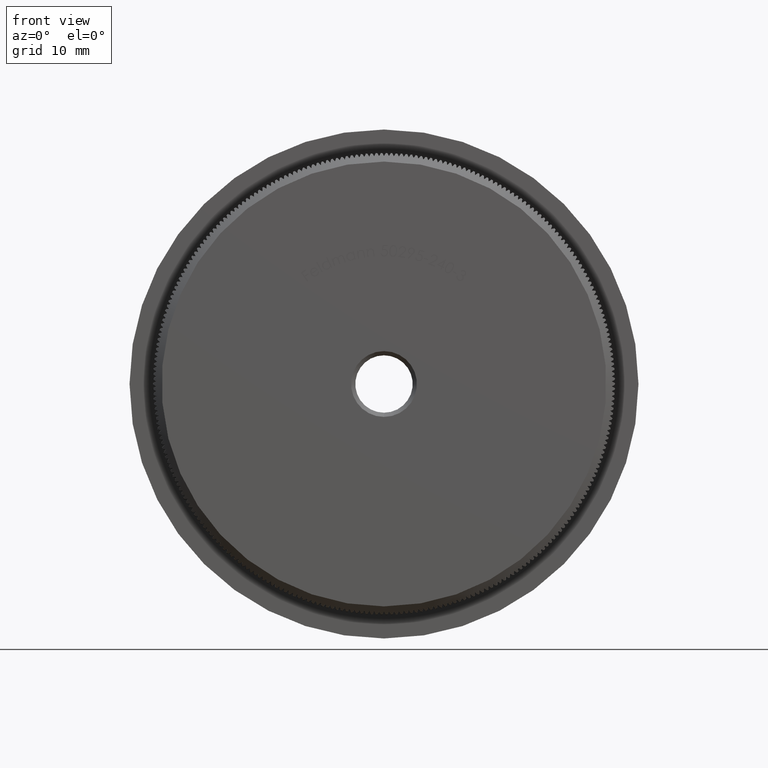
[diagram: clean part render]
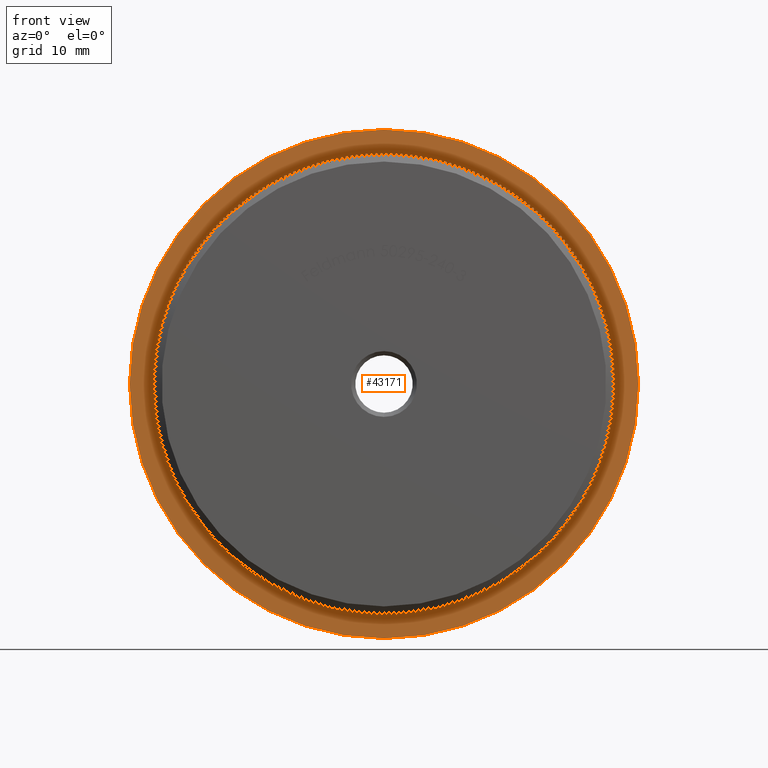
[diagram: same view with one face highlighted and labeled with its STEP entity id]
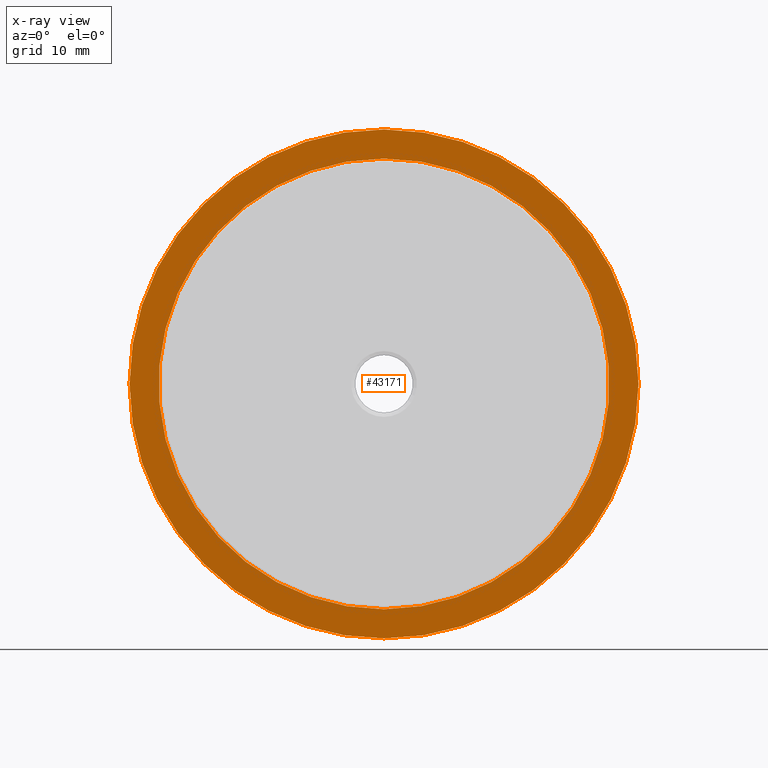
[diagram: x-ray of the same camera — body ghosted, the highlighted face saturated]
A machine part, front view. The second image highlights one B-rep face of the part: STEP entity #43171.
The next image is the same camera in x-ray: the body ghosted, the highlighted face saturated — about 0% of this face is hidden behind the body in this view.
In plain terms, the highlighted planar face has unit normal (0, -1, -0).
Its self-contained STEP definition (entity closure, byte-faithful):
#265 = CARTESIAN_POINT ( 'NONE',  ( 26.70000000000000284, 8.000000000000000000, 0.000000000000000000 ) ) ;
#3207 = ORIENTED_EDGE ( 'NONE', *, *, #15233, .F. ) ;
#3476 = DIRECTION ( 'NONE',  ( 0.000000000000000000, 0.000000000000000000, -1.000000000000000000 ) ) ;
#3496 = CARTESIAN_POINT ( 'NONE',  ( 3.692310099429270397E-15, 8.000000000000000000, 30.15000000000000213 ) ) ;
#3766 = DIRECTION ( 'NONE',  ( 0.000000000000000000, -1.000000000000000000, -0.000000000000000000 ) ) ;
#3949 = AXIS2_PLACEMENT_3D ( 'NONE', #32938, #12009, #43641 ) ;
#4619 = DIRECTION ( 'NONE',  ( 0.000000000000000000, 0.000000000000000000, -1.000000000000000000 ) ) ;
#4943 = EDGE_CURVE ( 'NONE', #19600, #17996, #9366, .T. ) ;
#5332 = EDGE_CURVE ( 'NONE', #17996, #19600, #28992, .T. ) ;
#6975 = CARTESIAN_POINT ( 'NONE',  ( 0.000000000000000000, 8.000000000000000000, -30.14999999999999858 ) ) ;
#8225 = VERTEX_POINT ( 'NONE', #19985 ) ;
#8661 = ORIENTED_EDGE ( 'NONE', *, *, #4943, .T. ) ;
#9366 = CIRCLE ( 'NONE', #3949, 30.14999999999999858 ) ;
#10164 = PLANE ( 'NONE',  #42213 ) ;
#12009 = DIRECTION ( 'NONE',  ( -0.000000000000000000, -1.000000000000000000, -0.000000000000000000 ) ) ;
#12790 = DIRECTION ( 'NONE',  ( -0.000000000000000000, -1.000000000000000000, -0.000000000000000000 ) ) ;
#15233 = EDGE_CURVE ( 'NONE', #8225, #36728, #37503, .T. ) ;
#16994 = EDGE_CURVE ( 'NONE', #36728, #8225, #25401, .T. ) ;
#17996 = VERTEX_POINT ( 'NONE', #3496 ) ;
#19252 = EDGE_LOOP ( 'NONE', ( #3207, #34869 ) ) ;
#19600 = VERTEX_POINT ( 'NONE', #6975 ) ;
#19939 = DIRECTION ( 'NONE',  ( -0.000000000000000000, -1.000000000000000000, -0.000000000000000000 ) ) ;
#19985 = CARTESIAN_POINT ( 'NONE',  ( 0.000000000000000000, 8.000000000000000000, -26.70000000000000284 ) ) ;
#25401 = CIRCLE ( 'NONE', #42893, 26.70000000000000284 ) ;
#25537 = DIRECTION ( 'NONE',  ( -0.000000000000000000, -1.000000000000000000, -0.000000000000000000 ) ) ;
#28029 = CARTESIAN_POINT ( 'NONE',  ( 3.309607974695722270E-15, 8.000000000000000000, 26.70000000000000284 ) ) ;
#28992 = CIRCLE ( 'NONE', #41680, 30.14999999999999858 ) ;
#30793 = EDGE_LOOP ( 'NONE', ( #8661, #45045 ) ) ;
#32938 = CARTESIAN_POINT ( 'NONE',  ( 0.000000000000000000, 8.000000000000000000, 0.000000000000000000 ) ) ;
#33363 = CARTESIAN_POINT ( 'NONE',  ( 0.000000000000000000, 8.000000000000000000, 0.000000000000000000 ) ) ;
#33516 = DIRECTION ( 'NONE',  ( 0.000000000000000000, 0.000000000000000000, -1.000000000000000000 ) ) ;
#34034 = CARTESIAN_POINT ( 'NONE',  ( 0.000000000000000000, 8.000000000000000000, 0.000000000000000000 ) ) ;
#34869 = ORIENTED_EDGE ( 'NONE', *, *, #16994, .F. ) ;
#36728 = VERTEX_POINT ( 'NONE', #28029 ) ;
#37003 = CARTESIAN_POINT ( 'NONE',  ( 0.000000000000000000, 8.000000000000000000, 0.000000000000000000 ) ) ;
#37263 = DIRECTION ( 'NONE',  ( 0.000000000000000000, 0.000000000000000000, -1.000000000000000000 ) ) ;
#37503 = CIRCLE ( 'NONE', #43415, 26.70000000000000284 ) ;
#40308 = FACE_OUTER_BOUND ( 'NONE', #30793, .T. ) ;
#40833 = FACE_BOUND ( 'NONE', #19252, .T. ) ;
#41680 = AXIS2_PLACEMENT_3D ( 'NONE', #33363, #19939, #33516 ) ;
#42213 = AXIS2_PLACEMENT_3D ( 'NONE', #265, #3766, #3476 ) ;
#42893 = AXIS2_PLACEMENT_3D ( 'NONE', #37003, #25537, #4619 ) ;
#43171 = ADVANCED_FACE ( 'NONE', ( #40308, #40833 ), #10164, .T. ) ;
#43415 = AXIS2_PLACEMENT_3D ( 'NONE', #34034, #12790, #37263 ) ;
#43641 = DIRECTION ( 'NONE',  ( 0.000000000000000000, 0.000000000000000000, -1.000000000000000000 ) ) ;
#45045 = ORIENTED_EDGE ( 'NONE', *, *, #5332, .T. ) ;